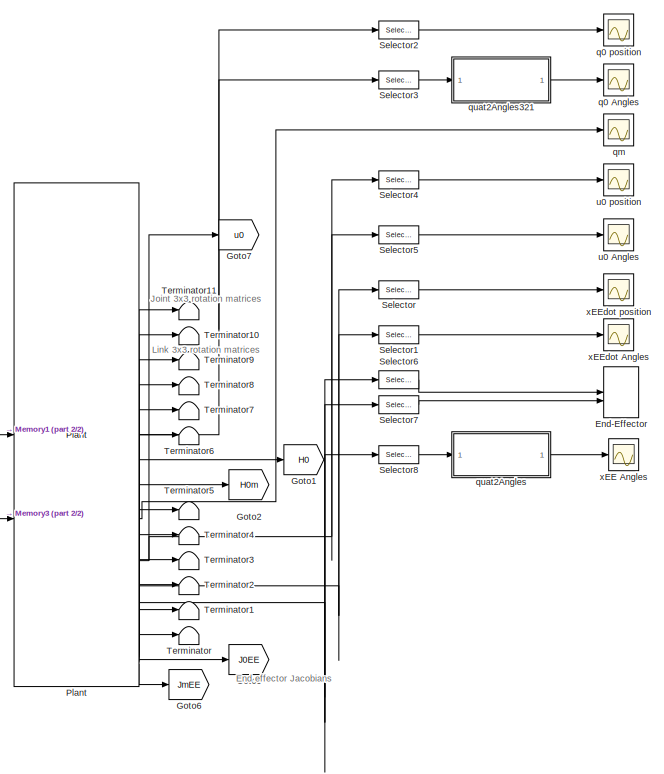
[diagram: root canvas - part 1/2, right side, full height]
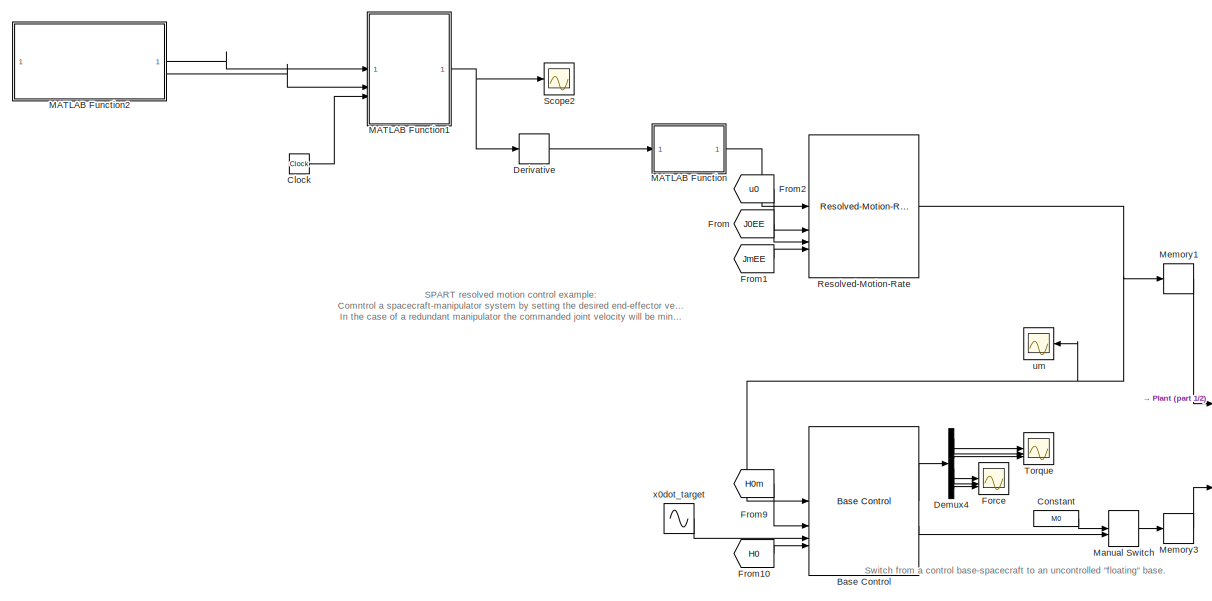
[diagram: root canvas - part 2/2, left side, full height]
MODEL slx_8296f5733288
KIND model
CONFIG AbsTol = auto
CONFIG EnableMultiTasking = on
CONFIG FixedStep = auto
CONFIG InitFcn = ResolvedMotion_Example_Init
CONFIG MaxStep = 0.0001
CONFIG MinStep = auto
CONFIG RelTol = auto
CONFIG SampleTimeConstraint = Unconstrained
CONFIG SolverName = VariableStepAuto
CONFIG StartTime = 0.0
CONFIG StopTime = 0.1
BLOCK [Reference] Base Control  REF=SPART_Lib/Control/Base Control
  SourceBlock = SPART_Lib/Control/Base Control
  SourceType = SubSystem
BLOCK [Clock] Clock
BLOCK [Constant] Constant
  Value = M0
BLOCK [Demux] Demux4
  Outputs = 6
BLOCK [Derivative] Derivative
BLOCK [Record] End-Effector
  CompatibilityTag = XY
  FileSettingsInternal = {"entries":[{"content":{"excelSettings":{"content":{},"type":"Streamout.ExcelSettings"}},"type":"Streamout.FileSettingStorage","uuid":""}],"packageUris":["http:\/\/schema.mathworks.com\/mf0\/streamout_blocks\/R2020a"],"version":"1.0"}
  Layout = [1 1]
  SignalsInternal = {"entries":[{"content":{"signals":[{"content":{"blockPath":[],"dimensions":[1,1],"domain":"","lineColor":"#a2142f","plots":[1],"port":1,"sid":[""],"signalID":72,"signalName":"Selector6"},"type":"RecordBlkView.Signal","uuid":""},{"content":{"blockPath":[],"dimensions":[1,1],"domain":"","lineColor":"#139fff","plots":[1],"port":2,"sid":[""],"signalID":76,"signalName":"Selector7"},"type":"RecordBlkVie...<+166ch>
  VisualizationBindings = {"xyplotplugin":{"info":[{"series":[{"bindingParametersList":[{"parameter":"Y-Axis","signalID":76,"signalName":"Selector7"},{"parameter":"X-Axis","signalID":72,"signalName":"Selector6"}],"seriesID":28424}],"subplotID":1}]}}
  st = -1
BLOCK [Scope] Force
  Floating = off
  NumInputPorts = 3
  ScopeSpecificationString = Simulink.scopes.TimeScopeBlockCfg('CurrentConfiguration', extmgr.ConfigurationSet(extmgr.Configuration('Core','General UI',true),extmgr.Configuration('Core','Source UI',true),extmgr.Configuration('Sources','WiredSimulink',true,'DataLoggingVariableName','ScopeData9','DataLoggingLimitDataPoints',true,'DataLoggingSaveFormat','Array','DataLoggingDecimation','1','DataLoggingDecimateData',true),extmgr.C...<+3066ch>
BLOCK [From] From
  GotoTag = J0EE
BLOCK [From] From1
  GotoTag = JmEE
BLOCK [From] From10
  GotoTag = H0
BLOCK [From] From2
  GotoTag = u0
BLOCK [From] From9
  GotoTag = H0m
BLOCK [Goto] Goto1
  GotoTag = H0
BLOCK [Goto] Goto2
  GotoTag = H0m
BLOCK [Goto] Goto5
  GotoTag = J0EE
BLOCK [Goto] Goto6
  GotoTag = JmEE
BLOCK [Goto] Goto7
  GotoTag = u0
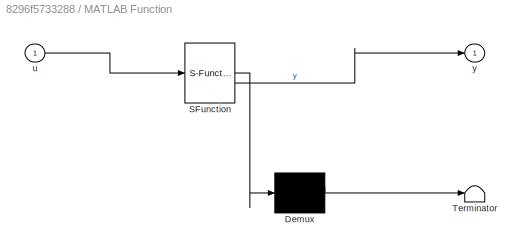
BLOCK [SubSystem] MATLAB Function
  ErrorFcn = Stateflow.Translate.translate
  PermitHierarchicalResolution = ExplicitOnly
  SFBlockType = MATLAB Function
  TreatAsAtomicUnit = on
BLOCK [Demux] MATLAB Function/ Demux 
  Outputs = 1
BLOCK [S-Function] MATLAB Function/ SFunction 
  EnableBusSupport = on
  FunctionName = sf_sfun
  PortCounts = [1 2]
  SFcnIsStateOwnerBlock = off
  SFunctionDeploymentMode = off
  Tag = Stateflow S-Function 4
BLOCK [Terminator] MATLAB Function/ Terminator 
BLOCK [Inport] MATLAB Function/u
BLOCK [Outport] MATLAB Function/y
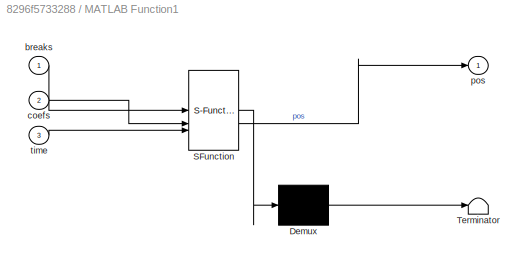
BLOCK [SubSystem] MATLAB Function1
  ErrorFcn = Stateflow.Translate.translate
  PermitHierarchicalResolution = ExplicitOnly
  SFBlockType = MATLAB Function
  TreatAsAtomicUnit = on
BLOCK [Demux] MATLAB Function1/ Demux 
  Outputs = 1
BLOCK [S-Function] MATLAB Function1/ SFunction 
  EnableBusSupport = on
  FunctionName = sf_sfun
  PortCounts = [3 2]
  SFcnIsStateOwnerBlock = off
  SFunctionDeploymentMode = off
  Tag = Stateflow S-Function 3
BLOCK [Terminator] MATLAB Function1/ Terminator 
BLOCK [Inport] MATLAB Function1/breaks
BLOCK [Inport] MATLAB Function1/coefs
  Port = 2
BLOCK [Outport] MATLAB Function1/pos
BLOCK [Inport] MATLAB Function1/time
  Port = 3
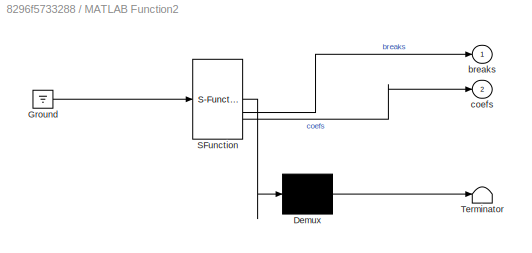
BLOCK [SubSystem] MATLAB Function2
  ErrorFcn = Stateflow.Translate.translate
  PermitHierarchicalResolution = ExplicitOnly
  SFBlockType = MATLAB Function
  TreatAsAtomicUnit = on
BLOCK [Demux] MATLAB Function2/ Demux 
  Outputs = 1
BLOCK [Ground] MATLAB Function2/ Ground 
BLOCK [S-Function] MATLAB Function2/ SFunction 
  EnableBusSupport = on
  FunctionName = sf_sfun
  PortCounts = [1 3]
  SFcnIsStateOwnerBlock = off
  SFunctionDeploymentMode = off
  Tag = Stateflow S-Function 5
BLOCK [Terminator] MATLAB Function2/ Terminator 
BLOCK [Outport] MATLAB Function2/breaks
BLOCK [Outport] MATLAB Function2/coefs
  Port = 2
BLOCK [ManualSwitch] Manual Switch
  CurrentSetting = 0
BLOCK [Memory] Memory1
  InheritSampleTime = on
  InitialCondition = um0
BLOCK [Memory] Memory3
  InheritSampleTime = on
  InitialCondition = M0
BLOCK [Reference] Plant  REF=SPART_Lib/Plant
  SourceBlock = SPART_Lib/Plant
  SourceType = SubSystem
BLOCK [Reference] Resolved-Motion-Rate   REF=SPART_Lib/Control/Resolved-Motion-Rate

  SourceBlock = SPART_Lib/Control/Resolved-Motion-Rate
  SourceType = SubSystem
BLOCK [Scope] Scope2
  Floating = off
  NumInputPorts = 1
  ScopeSpecificationString = Simulink.scopes.TimeScopeBlockCfg('CurrentConfiguration', extmgr.ConfigurationSet(extmgr.Configuration('Core','General UI',true),extmgr.Configuration('Core','Source UI',true),extmgr.Configuration('Sources','WiredSimulink',true,'DataLoggingVariableName','ScopeData2'),extmgr.Configuration('Visuals','Time Domain',true,'SerializedDisplays',{struct('MinYLimReal','-0.0125','MaxYLimReal','0.1125','YLabel...<+1453ch>
BLOCK [Selector] Selector
  IndexOptions = Index vector (dialog)
  Indices = [4:6]
  InputPortWidth = 6
  OutputSizes = 1
BLOCK [Selector] Selector1
  IndexOptions = Index vector (dialog)
  Indices = [1:3]
  InputPortWidth = 6
  OutputSizes = 1
BLOCK [Selector] Selector2
  IndexOptions = Index vector (dialog)
  Indices = [5:7]
  InputPortWidth = 7
  OutputSizes = 1
BLOCK [Selector] Selector3
  IndexOptions = Index vector (dialog)
  Indices = [1:4]
  InputPortWidth = 7
  OutputSizes = 1
BLOCK [Selector] Selector4
  IndexOptions = Index vector (dialog)
  Indices = [4:6]
  InputPortWidth = 6
  OutputSizes = 1
BLOCK [Selector] Selector5
  IndexOptions = Index vector (dialog)
  Indices = [1:3]
  InputPortWidth = 6
  OutputSizes = 1
BLOCK [Selector] Selector6
  IndexOptions = Index vector (dialog)
  Indices = [5]
  InputPortWidth = 7
  OutputSizes = 1
BLOCK [Selector] Selector7
  IndexOptions = Index vector (dialog)
  Indices = [6]
  InputPortWidth = 7
  OutputSizes = 1
BLOCK [Selector] Selector8
  IndexOptions = Index vector (dialog)
  Indices = [1:4]
  InputPortWidth = 7
  OutputSizes = 1
BLOCK [Terminator] Terminator
BLOCK [Terminator] Terminator1
BLOCK [Terminator] Terminator10
BLOCK [Terminator] Terminator11
BLOCK [Terminator] Terminator2
BLOCK [Terminator] Terminator3
BLOCK [Terminator] Terminator4
BLOCK [Terminator] Terminator5
BLOCK [Terminator] Terminator6
BLOCK [Terminator] Terminator7
BLOCK [Terminator] Terminator8
BLOCK [Terminator] Terminator9
BLOCK [Scope] Torque
  Floating = off
  NumInputPorts = 3
  ScopeSpecificationString = Simulink.scopes.TimeScopeBlockCfg('CurrentConfiguration', extmgr.ConfigurationSet(extmgr.Configuration('Core','General UI',true),extmgr.Configuration('Core','Source UI',true),extmgr.Configuration('Sources','WiredSimulink',true,'DataLoggingVariableName','ScopeData10','DataLoggingLimitDataPoints',true,'DataLoggingSaveFormat','Array','DataLoggingDecimation','1','DataLoggingDecimateData',true),extmgr....<+3071ch>
BLOCK [Scope] q0 Angles
  Floating = off
  NumInputPorts = 1
  ScopeSpecificationString = Simulink.scopes.TimeScopeBlockCfg('CurrentConfiguration', extmgr.ConfigurationSet(extmgr.Configuration('Core','General UI',true),extmgr.Configuration('Core','Source UI',true),extmgr.Configuration('Sources','WiredSimulink',true,'DataLoggingVariableName','ScopeData2','DataLoggingLimitDataPoints',true,'DataLoggingSaveFormat','Array','DataLoggingDecimation','1','DataLoggingDecimateData',true),extmgr.C...<+1773ch>
BLOCK [Scope] q0 position 
  Floating = off
  NumInputPorts = 1
  ScopeSpecificationString = Simulink.scopes.TimeScopeBlockCfg('CurrentConfiguration', extmgr.ConfigurationSet(extmgr.Configuration('Core','General UI',true),extmgr.Configuration('Core','Source UI',true),extmgr.Configuration('Sources','WiredSimulink',true,'DataLoggingVariableName','ScopeData3','DataLoggingLimitDataPoints',true,'DataLoggingSaveFormat','Array','DataLoggingDecimation','1','DataLoggingDecimateData',true),extmgr.C...<+1746ch>
BLOCK [Scope] qm
  Floating = off
  NumInputPorts = 1
  ScopeSpecificationString = Simulink.scopes.TimeScopeBlockCfg('CurrentConfiguration', extmgr.ConfigurationSet(extmgr.Configuration('Core','General UI',true),extmgr.Configuration('Core','Source UI',true),extmgr.Configuration('Sources','WiredSimulink',true,'DataLoggingVariableName','ScopeData4','DataLoggingLimitDataPoints',true,'DataLoggingSaveFormat','Array','DataLoggingDecimation','1','DataLoggingDecimateData',true),extmgr.C...<+1763ch>
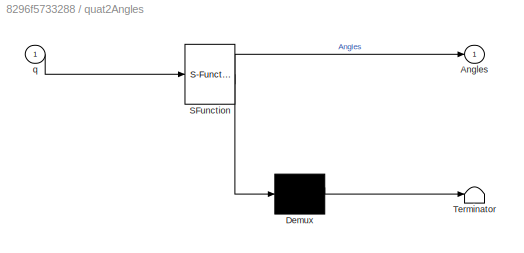
BLOCK [SubSystem] quat2Angles
  ErrorFcn = Stateflow.Translate.translate
  PermitHierarchicalResolution = ExplicitOnly
  SFBlockType = MATLAB Function
  TreatAsAtomicUnit = on
BLOCK [Demux] quat2Angles/ Demux 
  Outputs = 1
BLOCK [S-Function] quat2Angles/ SFunction 
  EnableBusSupport = on
  FunctionName = sf_sfun
  PortCounts = [1 2]
  SFcnIsStateOwnerBlock = off
  SFunctionDeploymentMode = off
  Tag = Stateflow S-Function 1
BLOCK [Terminator] quat2Angles/ Terminator 
BLOCK [Outport] quat2Angles/Angles
BLOCK [Inport] quat2Angles/q
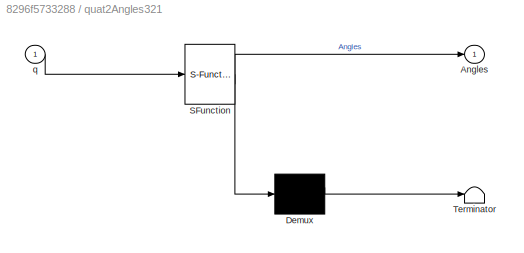
BLOCK [SubSystem] quat2Angles321
  ErrorFcn = Stateflow.Translate.translate
  PermitHierarchicalResolution = ExplicitOnly
  SFBlockType = MATLAB Function
  TreatAsAtomicUnit = on
BLOCK [Demux] quat2Angles321/ Demux 
  Outputs = 1
BLOCK [S-Function] quat2Angles321/ SFunction 
  EnableBusSupport = on
  FunctionName = sf_sfun
  PortCounts = [1 2]
  SFcnIsStateOwnerBlock = off
  SFunctionDeploymentMode = off
  Tag = Stateflow S-Function 2
BLOCK [Terminator] quat2Angles321/ Terminator 
BLOCK [Outport] quat2Angles321/Angles
BLOCK [Inport] quat2Angles321/q
BLOCK [Scope] u0 Angles
  Floating = off
  NumInputPorts = 1
  ScopeSpecificationString = Simulink.scopes.TimeScopeBlockCfg('CurrentConfiguration', extmgr.ConfigurationSet(extmgr.Configuration('Core','General UI',true),extmgr.Configuration('Core','Source UI',true),extmgr.Configuration('Sources','WiredSimulink',true,'DataLoggingVariableName','ScopeData5','DataLoggingLimitDataPoints',true,'DataLoggingSaveFormat','Array','DataLoggingDecimation','1','DataLoggingDecimateData',true),extmgr.C...<+1727ch>
BLOCK [Scope] u0 position
  Floating = off
  NumInputPorts = 1
  ScopeSpecificationString = Simulink.scopes.TimeScopeBlockCfg('CurrentConfiguration', extmgr.ConfigurationSet(extmgr.Configuration('Core','General UI',true),extmgr.Configuration('Core','Source UI',true),extmgr.Configuration('Sources','WiredSimulink',true,'DataLoggingVariableName','ScopeData6','DataLoggingLimitDataPoints',true,'DataLoggingSaveFormat','Array','DataLoggingDecimation','1','DataLoggingDecimateData',true),extmgr.C...<+1749ch>
BLOCK [Scope] um
  Floating = off
  NumInputPorts = 1
  ScopeSpecificationString = Simulink.scopes.TimeScopeBlockCfg('CurrentConfiguration', extmgr.ConfigurationSet(extmgr.Configuration('Core','General UI',true),extmgr.Configuration('Core','Source UI',true),extmgr.Configuration('Sources','WiredSimulink',true,'DataLoggingVariableName','ScopeData13','DataLoggingLimitDataPoints',true,'DataLoggingSaveFormat','Array','DataLoggingDecimation','1','DataLoggingDecimateData',true),extmgr....<+1783ch>
BLOCK [Sin] x0dot_target
  Amplitude = [0;0;0;0;0;0]
  Frequency = pi/4
  SampleTime = 0
BLOCK [Scope] xEE Angles
  Floating = off
  NumInputPorts = 1
  ScopeSpecificationString = Simulink.scopes.TimeScopeBlockCfg('CurrentConfiguration', extmgr.ConfigurationSet(extmgr.Configuration('Core','General UI',true),extmgr.Configuration('Core','Source UI',true),extmgr.Configuration('Sources','WiredSimulink',true,'DataLoggingVariableName','ScopeData1'),extmgr.Configuration('Visuals','Time Domain',true,'SerializedDisplays',{struct('MinYLimReal','-0.01598','MaxYLimReal','0.14381','YLab...<+1493ch>
BLOCK [Scope] xEEdot Angles
  Floating = off
  NumInputPorts = 1
  ScopeSpecificationString = Simulink.scopes.TimeScopeBlockCfg('CurrentConfiguration', extmgr.ConfigurationSet(extmgr.Configuration('Core','General UI',true),extmgr.Configuration('Core','Source UI',true),extmgr.Configuration('Sources','WiredSimulink',true,'DataLoggingVariableName','ScopeData1','DataLoggingLimitDataPoints',true,'DataLoggingSaveFormat','Array','DataLoggingDecimation','1','DataLoggingDecimateData',true),extmgr.C...<+1782ch>
BLOCK [Scope] xEEdot position
  Floating = off
  NumInputPorts = 1
  ScopeSpecificationString = Simulink.scopes.TimeScopeBlockCfg('CurrentConfiguration', extmgr.ConfigurationSet(extmgr.Configuration('Core','General UI',true),extmgr.Configuration('Core','Source UI',true),extmgr.Configuration('Sources','WiredSimulink',true,'DataLoggingLimitDataPoints',true,'DataLoggingSaveFormat','Array','DataLoggingDecimation','1','DataLoggingDecimateData',true),extmgr.Configuration('Visuals','Time Domain',tr...<+1727ch>
ANNOTATION (root): SPART resolved motion control example: Comntrol a spacecraft-manipulator system by setting the desired end-effector velocity and base velocity. In the case of a redundant manipulator the commanded joint velocity will be minimized.
ANNOTATION (root): End effector Jacobians
ANNOTATION (root): Joint 3x3 rotation matrices
ANNOTATION (root): Link 3x3 rotation matrices
ANNOTATION (root): Switch from a control base-spacecraft to an uncontrolled "floating" base.
LINE Base Control:1 -> Demux4:1
LINE Base Control:2 -> Manual Switch:2
LINE Clock:1 -> MATLAB Function1:3
LINE Constant:1 -> Manual Switch:1
LINE Demux4:1 -> Torque:1
LINE Demux4:2 -> Torque:2
LINE Demux4:3 -> Torque:3
LINE Demux4:4 -> Force:1
LINE Demux4:5 -> Force:2
LINE Demux4:6 -> Force:3
LINE Derivative:1 -> MATLAB Function:1
LINE From10:1 -> Base Control:4
LINE From1:1 -> Resolved-Motion-Rate :4
LINE From2:1 -> Resolved-Motion-Rate :2
LINE From9:1 -> Base Control:2
LINE From:1 -> Resolved-Motion-Rate :3
NET MATLAB Function1:1 -> Derivative:1, Scope2:1
LINE MATLAB Function2:1 -> MATLAB Function1:1
LINE MATLAB Function2:2 -> MATLAB Function1:2
LINE MATLAB Function:1 -> Resolved-Motion-Rate :1
LINE Manual Switch:1 -> Memory3:1
LINE Memory1:1 -> Plant:1
LINE Memory3:1 -> Plant:2
NET Plant:1 -> Selector2:1, Selector3:1
LINE Plant:10 -> Terminator7:1
LINE Plant:11 -> Terminator6:1
LINE Plant:12 -> Goto1:1
LINE Plant:13 -> Goto2:1
LINE Plant:14 -> Terminator5:1
LINE Plant:15 -> Terminator4:1
LINE Plant:16 -> Terminator3:1
LINE Plant:17 -> Terminator2:1
LINE Plant:18 -> Terminator1:1
LINE Plant:19 -> Terminator:1
LINE Plant:2 -> qm:1
LINE Plant:20 -> Goto5:1
LINE Plant:21 -> Goto6:1
NET Plant:3 -> Goto7:1, Selector4:1, Selector5:1
NET Plant:4 -> Selector1:1, Selector:1
NET Plant:5 -> Selector6:1, Selector7:1, Selector8:1
LINE Plant:6 -> Terminator11:1
LINE Plant:7 -> Terminator10:1
LINE Plant:8 -> Terminator9:1
LINE Plant:9 -> Terminator8:1
NET Resolved-Motion-Rate :1 -> Base Control:1, Memory1:1, um:1
LINE Selector1:1 -> xEEdot Angles:1
LINE Selector2:1 -> q0 position :1
LINE Selector3:1 -> quat2Angles321:1
LINE Selector4:1 -> u0 position:1
LINE Selector5:1 -> u0 Angles:1
LINE Selector6:1 -> End-Effector:1
LINE Selector7:1 -> End-Effector:2
LINE Selector8:1 -> quat2Angles:1
LINE Selector:1 -> xEEdot position:1
LINE quat2Angles321:1 -> q0 Angles:1
LINE quat2Angles:1 -> xEE Angles:1
LINE x0dot_target:1 -> Base Control:3
note: NET lines group one-source signal fan-out (src -> all destinations, sorted); 1:1 wires keep LINE
CHART quat2Angles states=1 transitions=1
  STATE_LABEL 'eML_blk_kernel()'
  STATE_LABEL 'SCRIPT:\nfunction Angles = quat2Angles321(q)\n%Convert the quaternion to Euler angles (321 sequence), x-phi, y-theta, z-psi.\n%\n%Uses the functions under the Utilities folder\n\n\nAngles = quat_Angles321(q);\n\nend'
CHART quat2Angles321 states=1 transitions=1
  STATE_LABEL 'eML_blk_kernel()'
  STATE_LABEL 'SCRIPT:\nfunction Angles = quat2Angles321(q)\n%Convert the quaternion to Euler angles (321 sequence), x-phi, y-theta, z-psi.\n%\n%Uses the functions under the Utilities folder\n\n\nAngles = quat_Angles321(q);\n\nend'
CHART MATLAB Function1 states=1 transitions=1
  STATE_LABEL 'eML_blk_kernel()'
  STATE_LABEL 'SCRIPT:\nfunction pos = fcn(breaks, coefs, time)\n\npp = mkpp(breaks, coefs);\n\npos = ppval(pp, time);\n\nend'
CHART MATLAB Function states=1 transitions=1
  STATE_LABEL 'eML_blk_kernel()'
  STATE_LABEL 'SCRIPT:\nfunction y = fcn(u)\n    y = [0; 0; 0; 1; u; 0];\n'
CHART MATLAB Function2 states=1 transitions=1
  STATE_LABEL 'eML_blk_kernel()'
  STATE_LABEL 'SCRIPT:\nfunction [breaks, coefs] = spline_generate()\n\n    x = 0:.001:0.1;\n    y = [0\t0.0382927986613443\t0.0418641283078245\t0.0401322071970747\t0.0702292597150331\t0.0439128170652531\t0.00751245044357049\t0.0351058122052457\t0.0541582735173035\t0.0480789108965160\t0.0549260705339851\t0.0156724376645222\t0.0192776425151263\t0.0332988427644122\t0.0274162239122750\t0.0235855027544436\t0.0221804827032142\t0.05863139...<+1657ch>'
CHART  states=0 transitions=0
CHART  states=0 transitions=0
CHART  states=0 transitions=0
CHART  states=0 transitions=0
CHART  states=0 transitions=0
